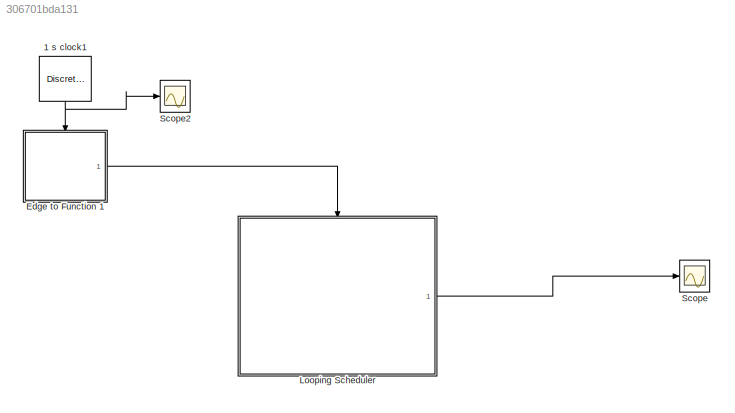
MODEL slx_306701bda131
KIND model
CONFIG AbsTol = auto
CONFIG EnableMultiTasking = off
CONFIG FixedStep = auto
CONFIG MaxStep = auto
CONFIG MinStep = auto
CONFIG RelTol = 1e-3
CONFIG SampleTimeConstraint = Unconstrained
CONFIG Solver = VariableStepAuto
CONFIG SolverName = VariableStepAuto
CONFIG StartTime = 0.0
CONFIG StopTime = 10.0
BLOCK [DiscretePulseGenerator] 1 s clock1
  Ports = [0, 1]
  SampleTime = 2
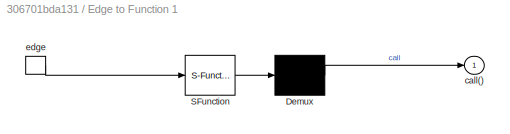
BLOCK [SubSystem] Edge to Function 1
  ErrorFcn = Stateflow.Translate.translate
  PermitHierarchicalResolution = ExplicitOnly
  Ports = [0, 1, 0, 1]
  RequestExecContextInheritance = off
  SFBlockType = Chart
  TreatAsAtomicUnit = on
BLOCK [Demux] Edge to Function 1/ Demux 
  Outputs = 1
  Ports = [1, 1]
BLOCK [S-Function] Edge to Function 1/ SFunction 
  EnableBusSupport = on
  FunctionName = sf_sfun
  PortCounts = [1 1]
  Ports = [1, 1]
  SFcnIsStateOwnerBlock = off
  SFunctionDeploymentMode = off
  Tag = Stateflow S-Function plus_generator_edge_trigger 1
BLOCK [Outport] Edge to Function 1/call()
  IconDisplay = Port number
BLOCK [TriggerPort] Edge to Function 1/edge
  Ports = [0, 1]
  ShowOutputPort = on
  VariantControl = Variant
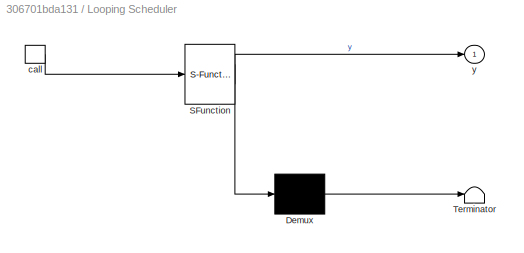
BLOCK [SubSystem] Looping Scheduler
  ErrorFcn = Stateflow.Translate.translate
  PermitHierarchicalResolution = ExplicitOnly
  Ports = [0, 1, 0, 1]
  RequestExecContextInheritance = off
  SFBlockType = Chart
  TreatAsAtomicUnit = on
BLOCK [Demux] Looping Scheduler/ Demux 
  Outputs = 1
  Ports = [1, 1]
BLOCK [S-Function] Looping Scheduler/ SFunction 
  EnableBusSupport = on
  FunctionName = sf_sfun
  PortCounts = [1 2]
  Ports = [1, 2]
  SFcnIsStateOwnerBlock = off
  SFunctionDeploymentMode = off
  Tag = Stateflow S-Function plus_generator_edge_trigger 3
BLOCK [Terminator] Looping Scheduler/ Terminator 
BLOCK [TriggerPort] Looping Scheduler/call
  Ports = [0, 1]
  ShowOutputPort = on
  TriggerType = function-call
  VariantControl = Variant
BLOCK [Outport] Looping Scheduler/y
  IconDisplay = Port number
BLOCK [Scope] Scope
  Floating = off
  NumInputPorts = 1
  Ports = [1]
  ScopeSpecificationString = Simulink.scopes.TimeScopeBlockCfg('CurrentConfiguration', extmgr.ConfigurationSet(extmgr.Configuration('Core','General UI',true),extmgr.Configuration('Core','Source UI',true),extmgr.Configuration('Sources','WiredSimulink',true),extmgr.Configuration('Visuals','Time Domain',true,'SerializedDisplays',{struct('MinYLimReal','-2.5','MaxYLimReal','22.5','YLabelReal','','MinYLimMag','0.00000','MaxYLimMag'...<+1346ch>
BLOCK [Scope] Scope2
  Floating = off
  NumInputPorts = 1
  Ports = [1]
  ScopeSpecificationString = Simulink.scopes.TimeScopeBlockCfg('CurrentConfiguration', extmgr.ConfigurationSet(extmgr.Configuration('Core','General UI',true),extmgr.Configuration('Core','Source UI',true),extmgr.Configuration('Sources','WiredSimulink',true,'DataLoggingVariableName','ScopeData1'),extmgr.Configuration('Visuals','Time Domain',true,'SerializedDisplays',{struct('MinYLimReal','-0.125','MaxYLimReal','1.125','YLabelRe...<+1437ch>
NET 1 s clock1:1 -> Edge to Function 1:trigger, Scope2:1
LINE Edge to Function 1:1 -> Looping Scheduler:trigger
LINE Looping Scheduler:1 -> Scope:1
note: NET lines group one-source signal fan-out (src -> all destinations, sorted); 1:1 wires keep LINE
CHART Edge to
Function 1 states=0 transitions=1
CHART Looping
Scheduler states=0 transitions=4
